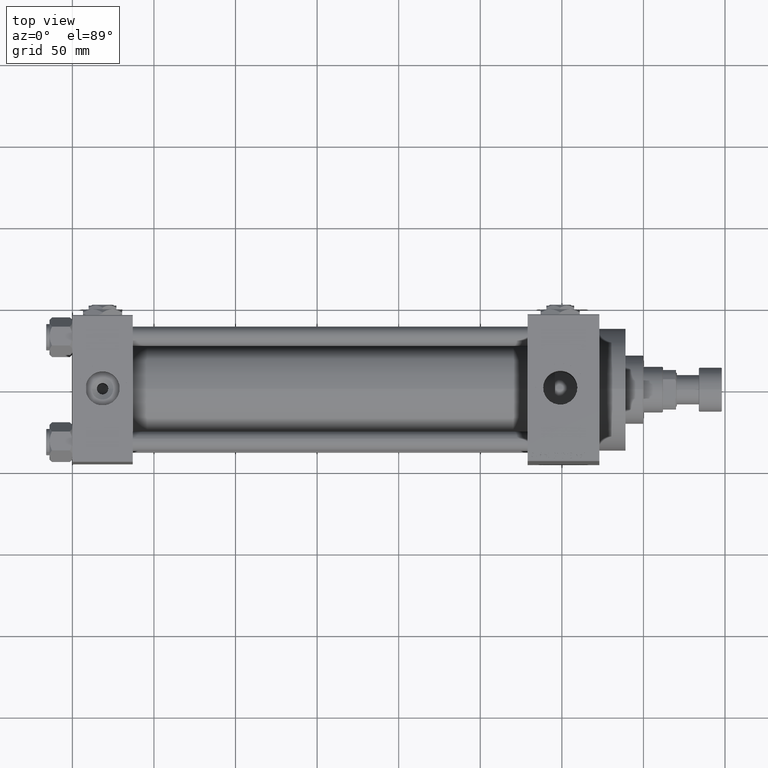
[diagram: clean part render]
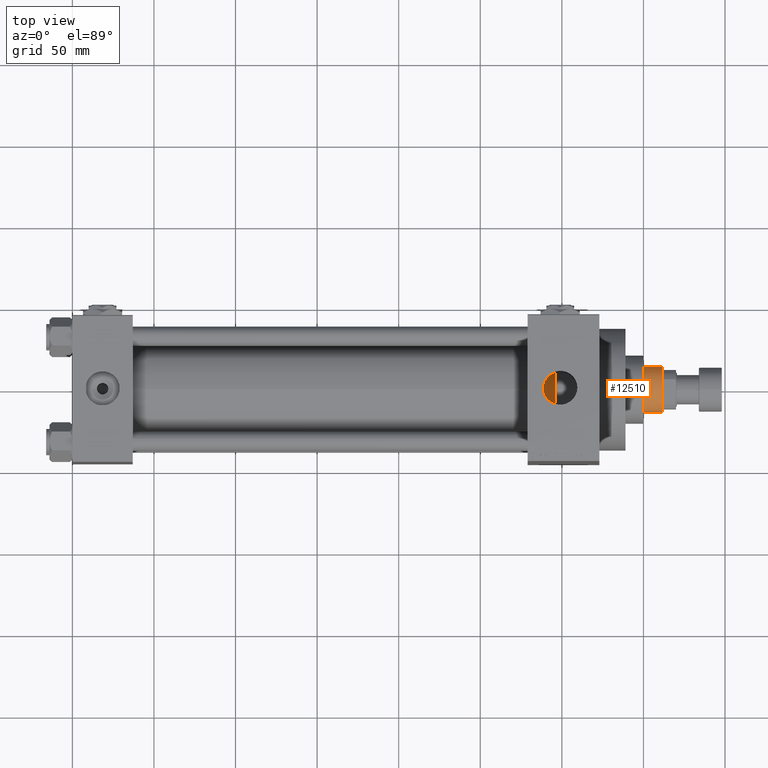
[diagram: same view with one face highlighted and labeled with its STEP entity id]
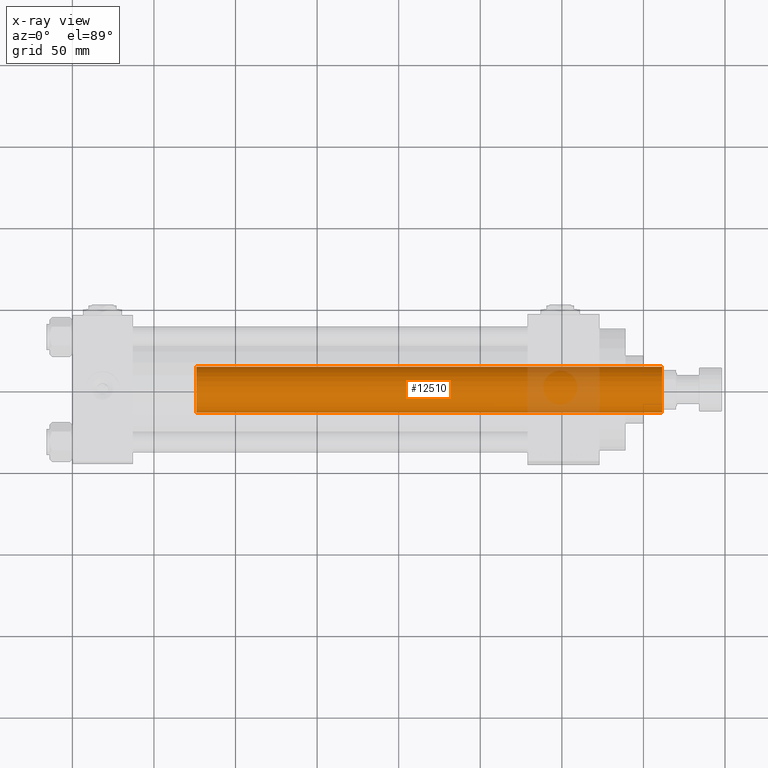
[diagram: x-ray of the same camera — body ghosted, the highlighted face saturated]
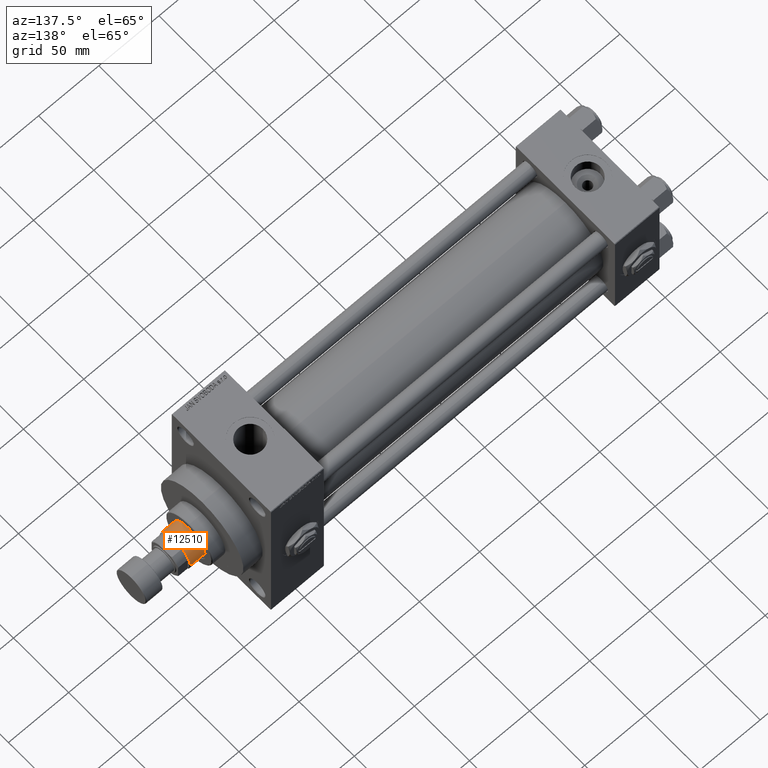
[diagram: same view with one face highlighted and labeled with its STEP entity id]
A machine part, top view. The second image highlights one B-rep face of the part: STEP entity #12510.
The next image is the same camera in x-ray: the body ghosted, the highlighted face saturated — about 11% of this face is hidden behind the body in this view.
A second angle (auxiliary view) of the same face is appended — the face is thin or edge-on in the first view.
In plain terms, the highlighted cylindrical surface (edge-blend (fillet) strip) has radius 14 mm, axis along (-1, 0, 0).
Its self-contained STEP definition (entity closure, byte-faithful):
#1633 = EDGE_CURVE ( 'NONE', #45622, #28242, #14222, .T. ) ;
#2418 = CARTESIAN_POINT ( 'NONE',  ( -14.00000000000000178, 0.000000000000000000, 324.9999999999999432 ) ) ;
#2870 = VECTOR ( 'NONE', #22122, 1000.000000000000000 ) ;
#2906 = LINE ( 'NONE', #2418, #40669 ) ;
#4032 = DIRECTION ( 'NONE',  ( -1.000000000000000000, 0.000000000000000000, 0.000000000000000000 ) ) ;
#4432 = CARTESIAN_POINT ( 'NONE',  ( -14.00000000000000178, 0.000000000000000000, 39.00000000000000000 ) ) ;
#5071 = DIRECTION ( 'NONE',  ( 1.000000000000000000, 0.000000000000000000, 0.000000000000000000 ) ) ;
#6366 = ORIENTED_EDGE ( 'NONE', *, *, #32287, .T. ) ;
#8319 = ORIENTED_EDGE ( 'NONE', *, *, #35118, .T. ) ;
#10475 = DIRECTION ( 'NONE',  ( 0.000000000000000000, 0.000000000000000000, -1.000000000000000000 ) ) ;
#10716 = CARTESIAN_POINT ( 'NONE',  ( 0.000000000000000000, 0.000000000000000000, 324.4999999999999432 ) ) ;
#11328 = CYLINDRICAL_SURFACE ( 'NONE', #16964, 14.00000000000000178 ) ;
#11582 = FACE_OUTER_BOUND ( 'NONE', #11858, .T. ) ;
#11858 = EDGE_LOOP ( 'NONE', ( #32598, #6366, #8319, #48363 ) ) ;
#12510 = ADVANCED_FACE ( 'NONE', ( #11582 ), #11328, .T. ) ;
#14222 = CIRCLE ( 'NONE', #46386, 14.00000000000000178 ) ;
#16016 = CARTESIAN_POINT ( 'NONE',  ( 14.00000000000000178, 1.714505518806294835E-15, 324.9999999999999432 ) ) ;
#16964 = AXIS2_PLACEMENT_3D ( 'NONE', #27149, #38507, #4032 ) ;
#17248 = AXIS2_PLACEMENT_3D ( 'NONE', #10716, #10475, #37414 ) ;
#18102 = VERTEX_POINT ( 'NONE', #36549 ) ;
#18584 = CARTESIAN_POINT ( 'NONE',  ( 14.00000000000000178, 1.714505518806294835E-15, 324.4999999999999432 ) ) ;
#19642 = DIRECTION ( 'NONE',  ( 0.000000000000000000, 0.000000000000000000, 1.000000000000000000 ) ) ;
#22122 = DIRECTION ( 'NONE',  ( -0.000000000000000000, -0.000000000000000000, -1.000000000000000000 ) ) ;
#22908 = CARTESIAN_POINT ( 'NONE',  ( 14.00000000000000178, 1.714505518806294835E-15, 39.00000000000000000 ) ) ;
#26369 = VERTEX_POINT ( 'NONE', #18584 ) ;
#27149 = CARTESIAN_POINT ( 'NONE',  ( 0.000000000000000000, 0.000000000000000000, 324.9999999999999432 ) ) ;
#28242 = VERTEX_POINT ( 'NONE', #22908 ) ;
#32287 = EDGE_CURVE ( 'NONE', #26369, #18102, #38147, .T. ) ;
#32598 = ORIENTED_EDGE ( 'NONE', *, *, #34843, .F. ) ;
#34843 = EDGE_CURVE ( 'NONE', #26369, #28242, #35151, .T. ) ;
#35118 = EDGE_CURVE ( 'NONE', #18102, #45622, #2906, .T. ) ;
#35151 = LINE ( 'NONE', #16016, #2870 ) ;
#36015 = CARTESIAN_POINT ( 'NONE',  ( 0.000000000000000000, 0.000000000000000000, 39.00000000000000000 ) ) ;
#36549 = CARTESIAN_POINT ( 'NONE',  ( -14.00000000000000178, 0.000000000000000000, 324.4999999999999432 ) ) ;
#37414 = DIRECTION ( 'NONE',  ( 1.000000000000000000, 0.000000000000000000, 0.000000000000000000 ) ) ;
#38147 = CIRCLE ( 'NONE', #17248, 14.00000000000000178 ) ;
#38507 = DIRECTION ( 'NONE',  ( -0.000000000000000000, -0.000000000000000000, -1.000000000000000000 ) ) ;
#40669 = VECTOR ( 'NONE', #40674, 1000.000000000000000 ) ;
#40674 = DIRECTION ( 'NONE',  ( -0.000000000000000000, -0.000000000000000000, -1.000000000000000000 ) ) ;
#45622 = VERTEX_POINT ( 'NONE', #4432 ) ;
#46386 = AXIS2_PLACEMENT_3D ( 'NONE', #36015, #19642, #5071 ) ;
#48363 = ORIENTED_EDGE ( 'NONE', *, *, #1633, .T. ) ;